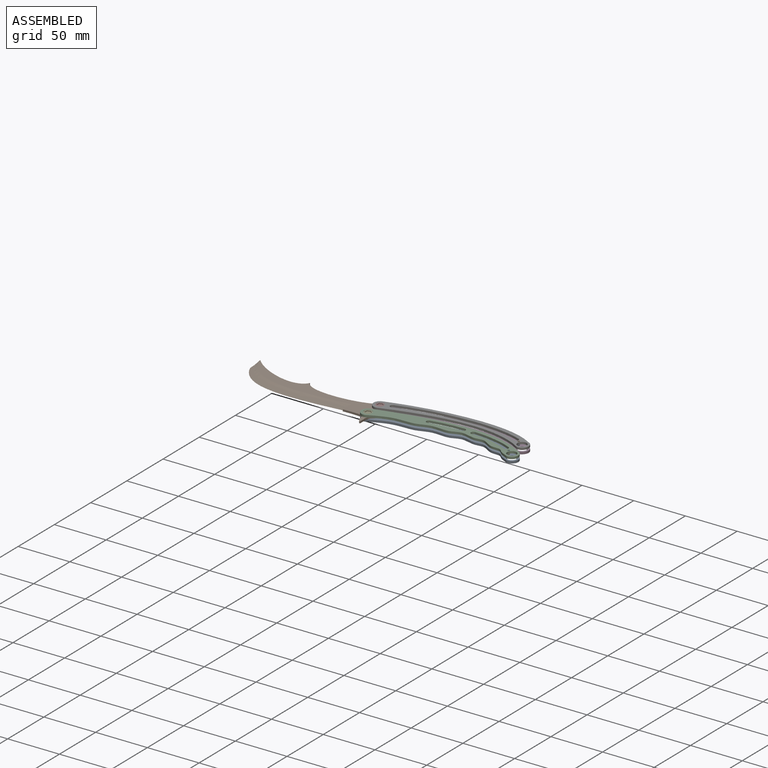
[diagram: assembled view]
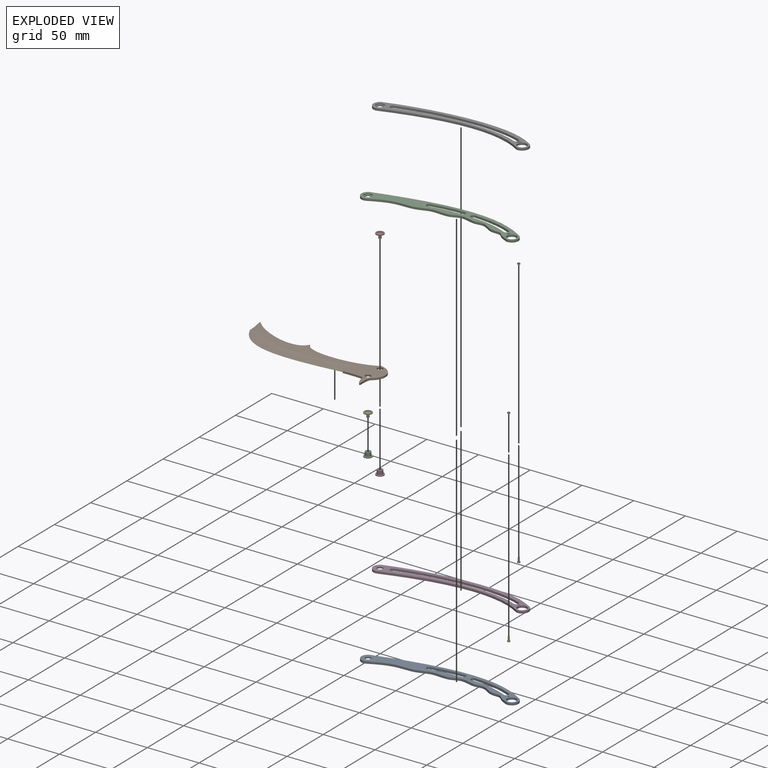
[diagram: exploded view]
GUIDED TOUR — MATED ASSEMBLY (Onshape document 11a72d09141f33b0764f494f, AutoMate assembly 11a72d09141f33b0764f494f_27b04f11c9f97ebd42daf3f0_1d5b9a840925a0e439dd26f9_default)

This assembly has 13 components, labeled P0..P12 below (a component is one placed occurrence of a part; the same part can appear more than once), held together by 14 mates. A mate is a constraint between two components; its type names the relative motion it leaves free:
  FASTENED — locks the two components together rigidly (no relative motion),
  REVOLUTE — leaves rotation about the listed axis free (a hinge),
  SLIDER — leaves translation along the listed axis free.
Axis/direction vectors are unit vectors and 'through' points are millimeter coordinates, both in the assembly's world frame.

MATES
  1. SLIDER "Slider 1": P5 <-> P10, axis (0.000, 0.000, 1.000) through (-62.68, -118.55, 54.06) mm
  2. FASTENED "Fastened 7": P5 <-> P4, direction (0.000, 0.000, 1.000) through (-62.68, -118.55, 53.17) mm
  3. FASTENED "Fastened 2": P12 <-> P2, direction (0.000, 0.000, -1.000) through (-195.37, -123.36, 53.17) mm
  4. SLIDER "Slider 2": P9 <-> P6, axis (0.000, 0.000, 1.000) through (-65.93, -100.12, 54.06) mm
  5. REVOLUTE "Revolute 1": P6 <-> P1, axis (0.000, 0.000, -1.000) through (-195.37, -106.81, 52.16) mm
  6. FASTENED "Fastened 6": P0 <-> P3, direction (0.000, 0.000, 1.000) through (-65.93, -100.12, 49.36) mm
  7. FASTENED "Fastened 4": P7 <-> P11, direction (0.000, 0.000, -1.000) through (-195.37, -106.81, 53.17) mm
  8. FASTENED "Fastened 5": P4 <-> P8, direction (0.000, 0.000, -1.000) through (-62.68, -118.55, 49.36) mm
  9. REVOLUTE "Revolute 2": P3 <-> P1, axis (0.000, 0.000, 1.000) through (-195.37, -106.81, 50.38) mm
  10. FASTENED "Fastened 8": P9 <-> P0, direction (0.000, 0.000, -1.000) through (-65.93, -100.12, 53.17) mm
  11. REVOLUTE "Revolute 3": P8 <-> P1, axis (0.000, 0.000, 1.000) through (-195.37, -123.36, 50.38) mm
  12. REVOLUTE "Revolute 4": P10 <-> P1, axis (0.000, 0.000, -1.000) through (-195.37, -123.36, 52.16) mm
  13. FASTENED "Fastened 3": P11 <-> P3, direction (0.000, 0.000, 1.000) through (-195.37, -106.81, 49.36) mm
  14. FASTENED "Fastened 1": P2 <-> P8, direction (0.000, 0.000, 1.000) through (-195.37, -123.36, 49.36) mm

ASSEMBLY ORDER
  1. P12 — the base component [order verified]
  2. P2 [order verified]
  3. P1 [order verified]
  4. P10 [order verified]
  5. P6 [order verified]
  6. P7 [order verified]
  7. P11 [order verified]
  8. P8 [order verified]
  9. P5 [order verified]
  10. P4 [order verified]
  11. P3 [order verified]
  12. P9 [order verified]
  13. P0 [order verified]
(P1, P2, P3, P8, P10 verified with a relaxed clearance tolerance: the source model stores slight part interference there.)
Order-tag legend:
  [order verified] — this step's position reverses a verified removal order: the component was checked to insert without passing through the ones already placed.

Of the 13 components, 4 carry the full construction recipe — the FeatureScript program that regenerates the part's solid from scratch; the rest are supplied as boundary geometry only.
Because this assembly has more than 12 components, the tour below covers the 12 most significant ones individually (every recipe-attached component first, then the largest by part volume), in assembly order; the remaining 1 are summarized together in a grouped section at the end.
Each toured component is shown spotlighted twice — in the assembled view, then in the exploded view, where a leader line traces a displaced component back to its assembled socket (saturated green if recipe-attached, orange if geometry-only; every other component desaturated gray) — followed by its recipe or geometry summary and the mates that hold it.
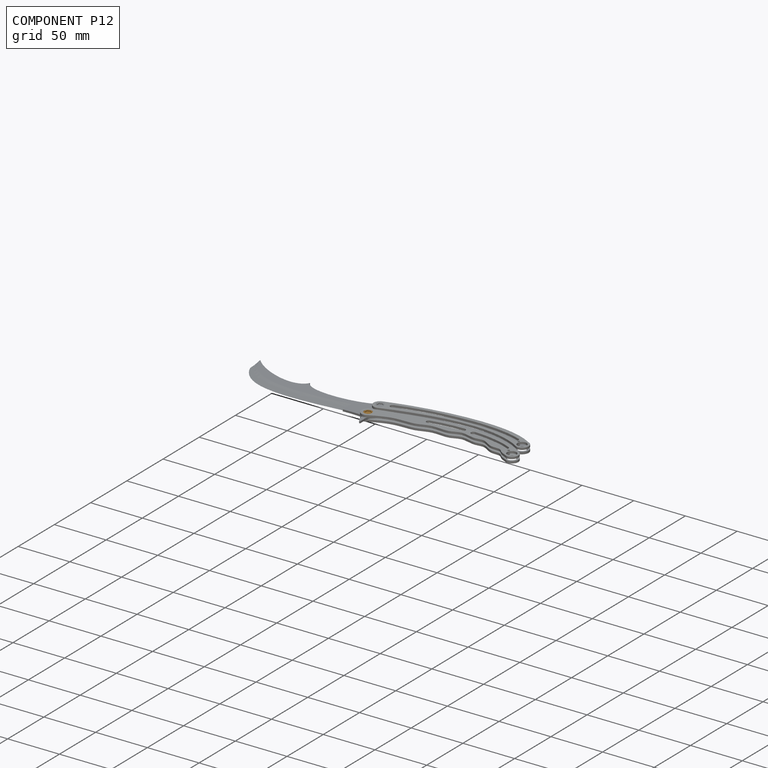
[diagram: component P12 — assembled]
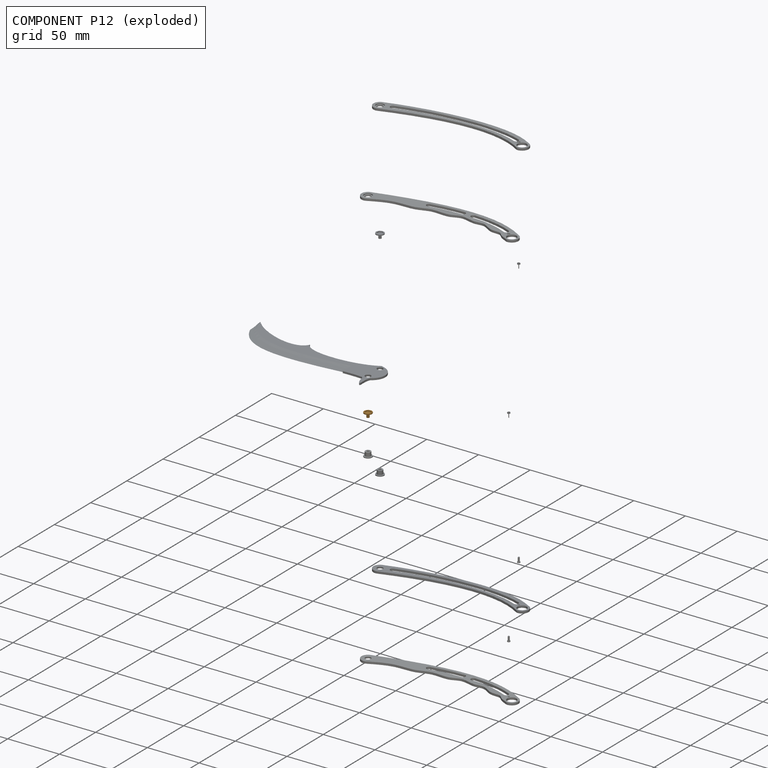
[diagram: component P12 — exploded]
COMPONENT P12 — geometry summary (no construction recipe available for this part):
  bounding box: 7.6 x 7.6 x 4.7 mm
  B-rep topology: 1 solid, 12 faces, 48 edges
  volume: 40 mm^3 (15% of its bounding box)
  symmetry: 6-fold rotationally symmetric about the z axis
Held by: FASTENED mate "Fastened 2" to P2.
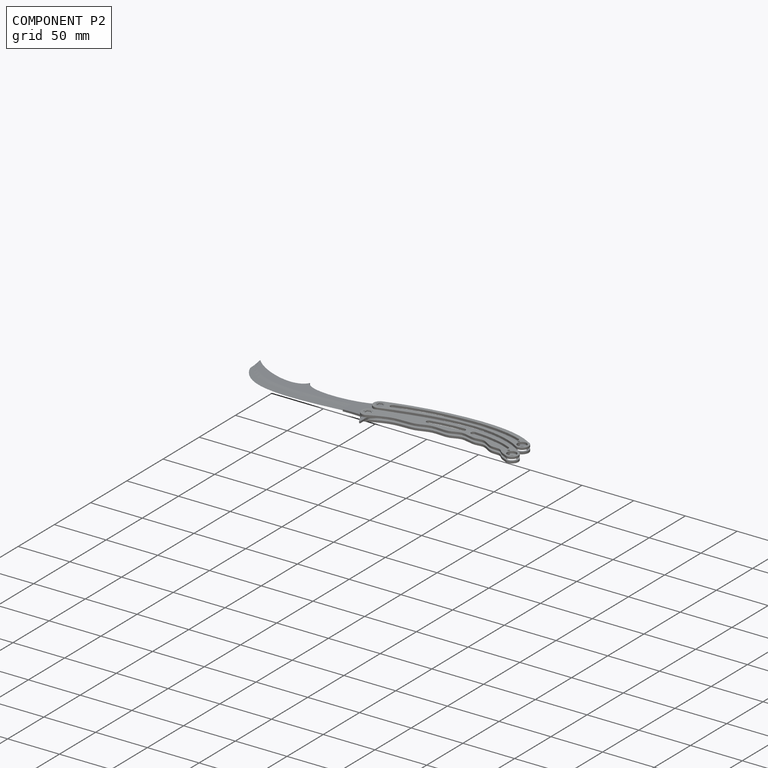
[diagram: component P2 — assembled]
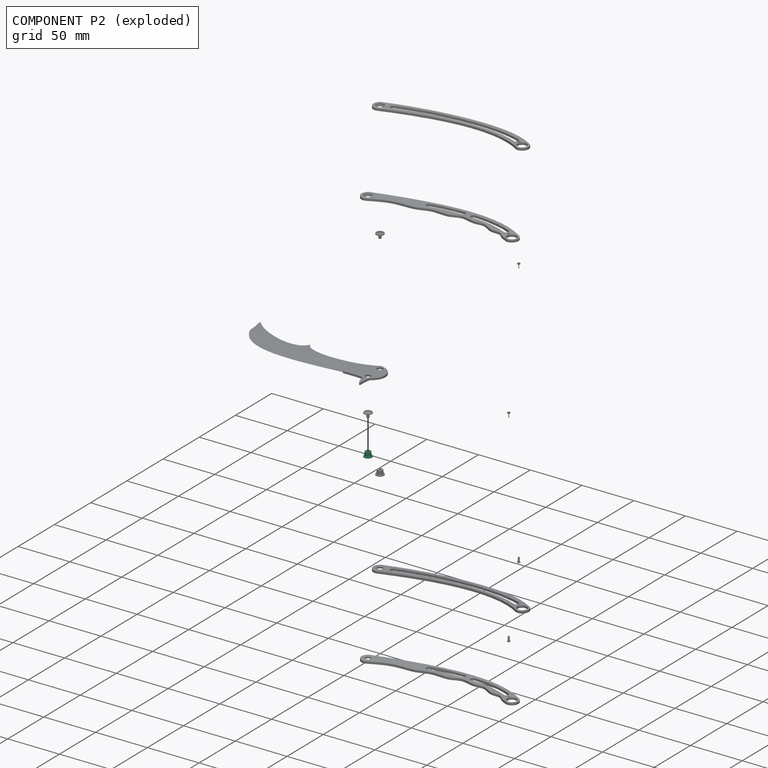
[diagram: component P2 — exploded]
COMPONENT P2 — recipe-attached (CADFS 00961306, mesh-verified: the recipe's output STEP matches this component's geometry to below the mesh-comparison resolution (tessellation chordal tolerance ~0.0176 mm)).
Held by: FASTENED mate "Fastened 2" to P12; FASTENED mate "Fastened 1" to P8.
Construction recipe (FeatureScript — the CAD program that rebuilds this solid; sketch coordinates are in the units given by the * unit suffixes, e.g. mm):

FeatureScript 1511;
import(path : "onshape/std/geometry.fs", version : "1511.0");
import(path : "onshape/std/common.fs", version : "1511.0");
const mm = millimeter;
const VERTEX = EntityType.VERTEX;
const EDGE = EntityType.EDGE;
const FACE = EntityType.FACE;
const BODY = EntityType.BODY;
function v(x, y){return vector(x, y);}
function OD(order){return orderDisambiguation(order);}
function OSD(set){return originalSetDisambiguation(set);}
function TD(topology){return topologyDisambiguation(topology);}
function TDD(query){return trueDependencyDisambiguation(query);}
function sQuery(a, b, c) {return sketchEntityQuery(a, b, c);}

annotation { "Feature Type Name" : "Feature", "Feature Type Description" : "" }
export const myFeature = defineFeature(function(context is Context, id is Id, definition is map)
    precondition{}
    {
        {
            var Q0;
            Q0=qCreatedBy(makeId("Top.planeOp"),FACE);
            var sketch = newSketch(context, id + "F0", { "sketchPlane" : qUnion([Q0])});
            skCircle(sketch, "E0", {"center": v(0, 0) * mm, "radius": 3.81 * mm});
            skSolve(sketch);
        }
        {
            var Q0;
            Q0=makeQuery(id+"F0.imprint","IMPRINT",FACE,{"disambiguationData":[TD([[makeQuery(id+"F0.imprint","IMPRINT",EDGE,{"derivedFrom":sQuery(id+"F0.wireOp",EDGE,"E0")}),1.0]])]});
            extrude(context, id + "F1", {"entities" : qUnion([Q0]), "depth" : 0.89 * mm, "offsetDistance" : 25.4 * mm});
        }
        {
            var Q0;
            Q0=makeQuery(id+"F1.opExtrude","CAP_FACE",FACE,{"disambiguationData":[OSD([sQuery(id+"F0.wireOp",EDGE,"E0")])],"isStart":false});
            var sketch = newSketch(context, id + "F2", { "sketchPlane" : qUnion([Q0])});
            skCircle(sketch, "E1", {"center": v(0, 0) * mm, "radius": 2.67 * mm});
            skSolve(sketch);
        }
        {
            var Q0;
            Q0=makeQuery(id+"F2.imprint","IMPRINT",FACE,{"disambiguationData":[TD([[makeQuery(id+"F2.imprint","IMPRINT",EDGE,{"derivedFrom":sQuery(id+"F2.wireOp",EDGE,"E1")}),1.0]])]});
            extrude(context, id + "F3", {"entities" : qUnion([Q0]), "operationType" : NewBodyOperationType.ADD, "depth" : 3.8 * mm, "offsetDistance" : 25.4 * mm});
        }
        {
            var Q0;
            Q0=makeQuery(id+"F3.opExtrude","CAP_FACE",FACE,{"disambiguationData":[OSD([sQuery(id+"F2.wireOp",EDGE,"E1")])],"isStart":false});
            var sketch = newSketch(context, id + "F4", { "sketchPlane" : qUnion([Q0])});
            skCircle(sketch, "E2", {"center": v(0, 0) * mm, "radius": 1.27 * mm});
            skSolve(sketch);
        }
        {
            var Q0;
            Q0=makeQuery(id+"F4.imprint","IMPRINT",FACE,{"disambiguationData":[TD([[makeQuery(id+"F4.imprint","IMPRINT",EDGE,{"derivedFrom":sQuery(id+"F4.wireOp",EDGE,"E2")}),1.0]])]});
            extrude(context, id + "F5", {"entities" : qUnion([Q0]), "operationType" : NewBodyOperationType.REMOVE, "oppositeDirection" : true, "depth" : 3.8 * mm, "offsetDistance" : 25.4 * mm});
        }
    });
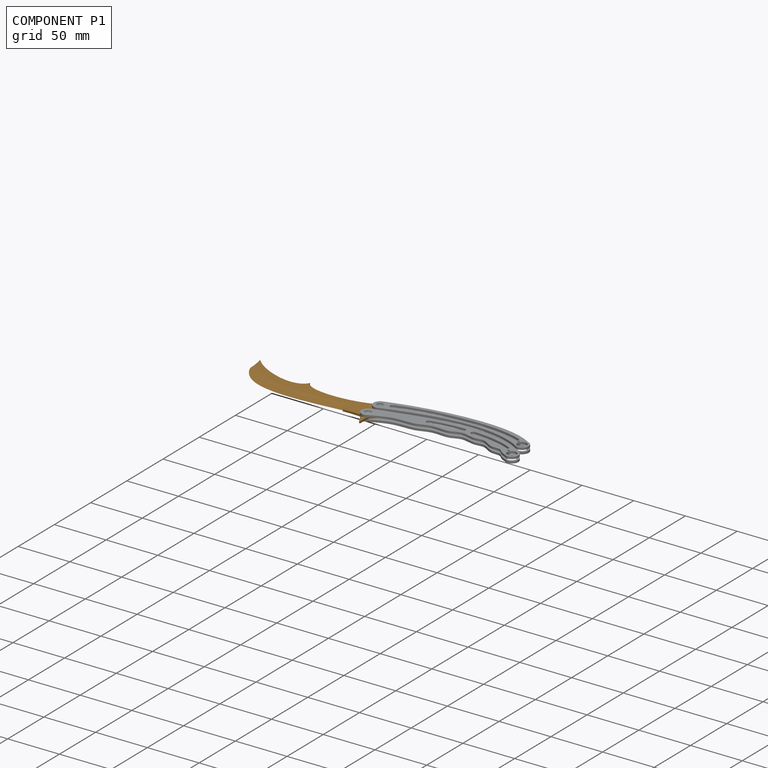
[diagram: component P1 — assembled]
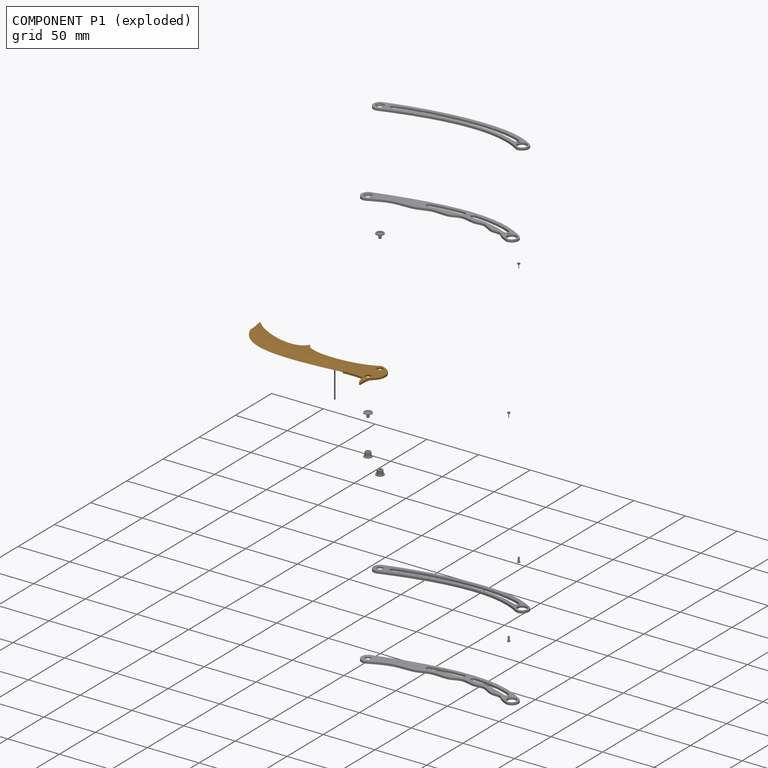
[diagram: component P1 — exploded]
COMPONENT P1 — geometry summary (no construction recipe available for this part):
  bounding box: 141.6 x 53.7 x 4.7 mm
  B-rep topology: 1 solid, 21 faces, 108 edges
  volume: 3436 mm^3 (10% of its bounding box)
  symmetry: mirror-symmetric across its z mid-plane
Held by: REVOLUTE mate "Revolute 1" to P6; REVOLUTE mate "Revolute 2" to P3; REVOLUTE mate "Revolute 3" to P8; REVOLUTE mate "Revolute 4" to P10.
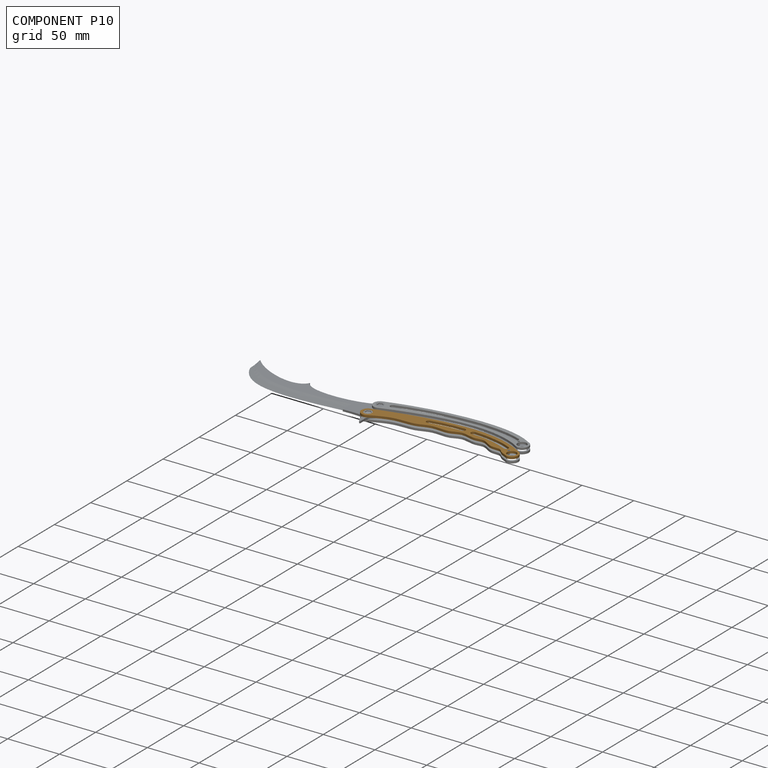
[diagram: component P10 — assembled]
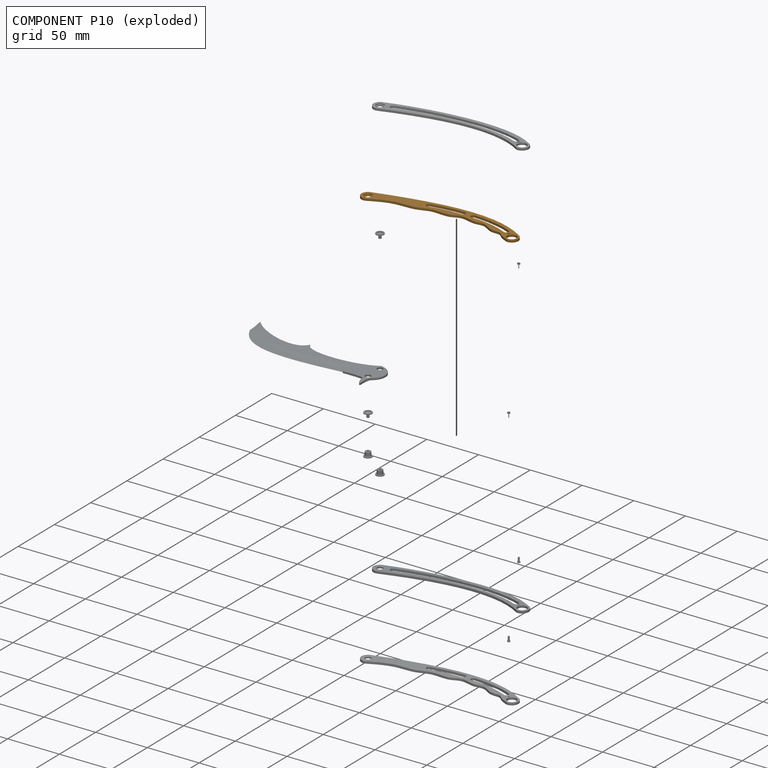
[diagram: component P10 — exploded]
COMPONENT P10 — geometry summary (no construction recipe available for this part):
  bounding box: 149.3 x 39.5 x 2.0 mm
  B-rep topology: 1 solid, 21 faces, 102 edges
  volume: 2861 mm^3 (24% of its bounding box)
Held by: SLIDER mate "Slider 1" to P5; REVOLUTE mate "Revolute 4" to P1.
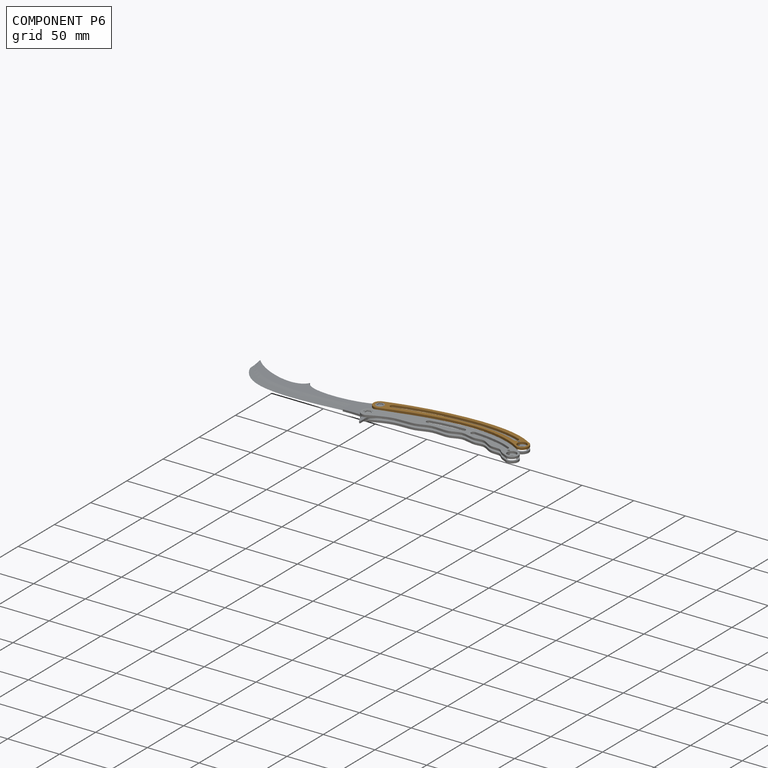
[diagram: component P6 — assembled]
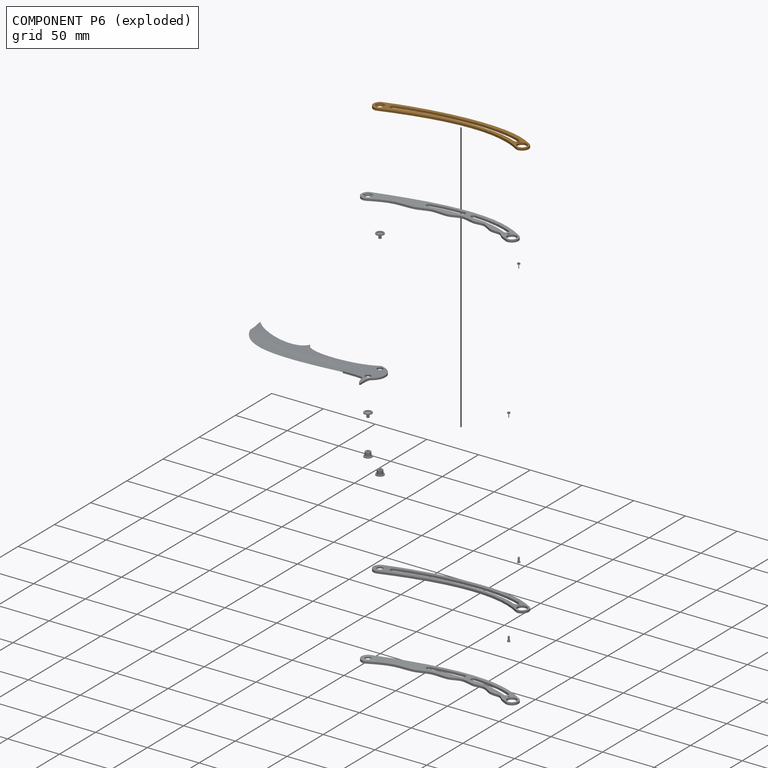
[diagram: component P6 — exploded]
COMPONENT P6 — geometry summary (no construction recipe available for this part):
  bounding box: 145.4 x 41.6 x 2.0 mm
  B-rep topology: 1 solid, 19 faces, 90 edges
  volume: 2227 mm^3 (18% of its bounding box)
  symmetry: mirror-symmetric across its z mid-plane
Held by: SLIDER mate "Slider 2" to P9; REVOLUTE mate "Revolute 1" to P1.
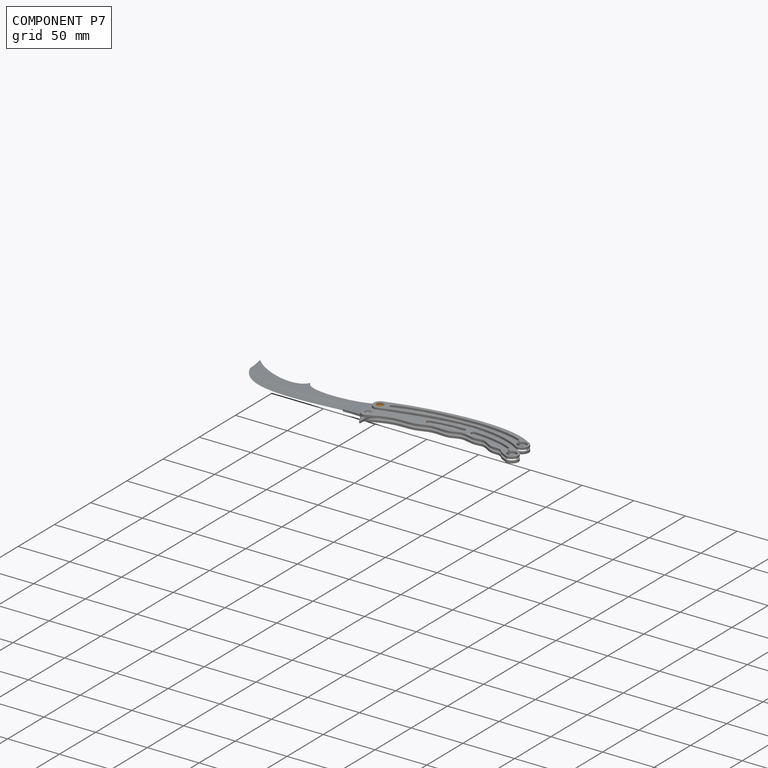
[diagram: component P7 — assembled]
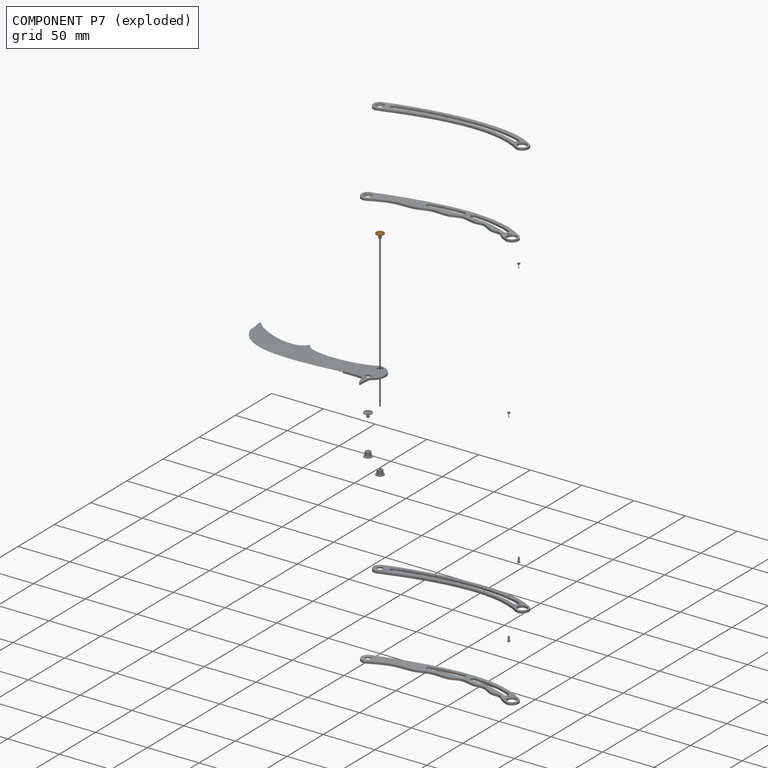
[diagram: component P7 — exploded]
COMPONENT P7 — geometry summary (no construction recipe available for this part):
  bounding box: 7.6 x 7.6 x 4.7 mm
  B-rep topology: 1 solid, 12 faces, 48 edges
  volume: 40 mm^3 (15% of its bounding box)
  symmetry: 6-fold rotationally symmetric about the z axis
Held by: FASTENED mate "Fastened 4" to P11.
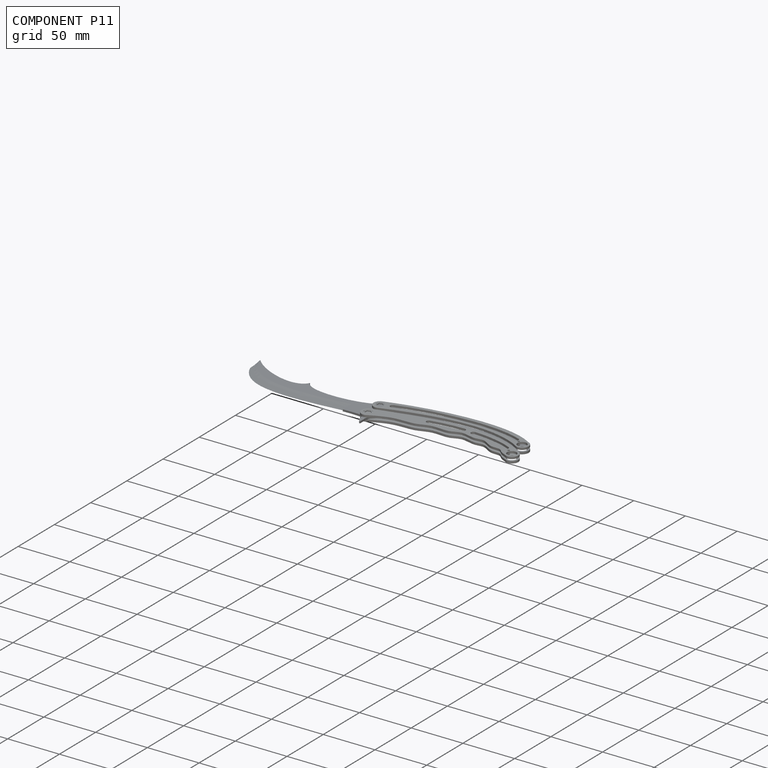
[diagram: component P11 — assembled]
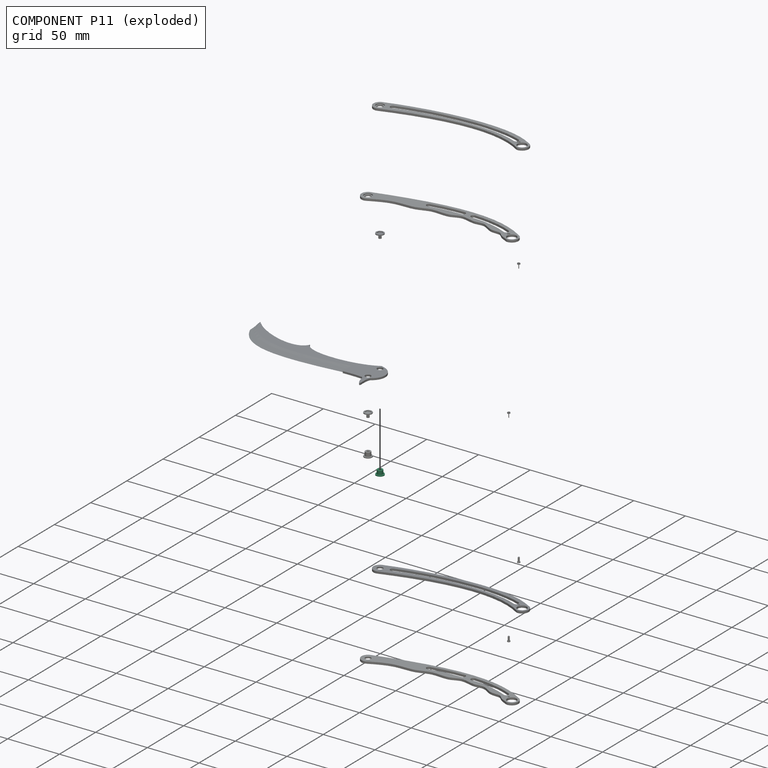
[diagram: component P11 — exploded]
COMPONENT P11 — same part as P2 (CADFS 00961306); its construction recipe is shown at P2.
Held by: FASTENED mate "Fastened 4" to P7; FASTENED mate "Fastened 3" to P3.
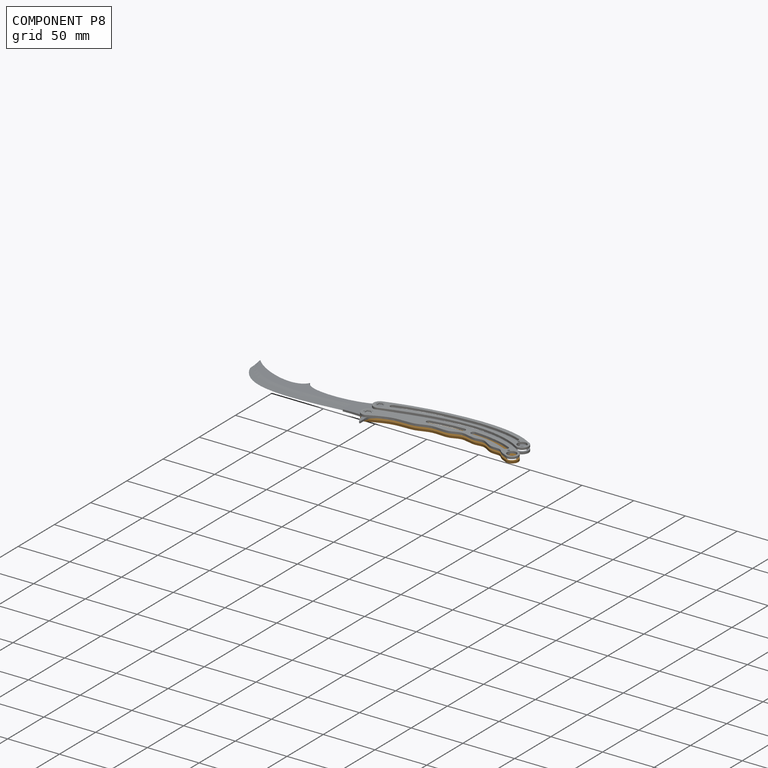
[diagram: component P8 — assembled]
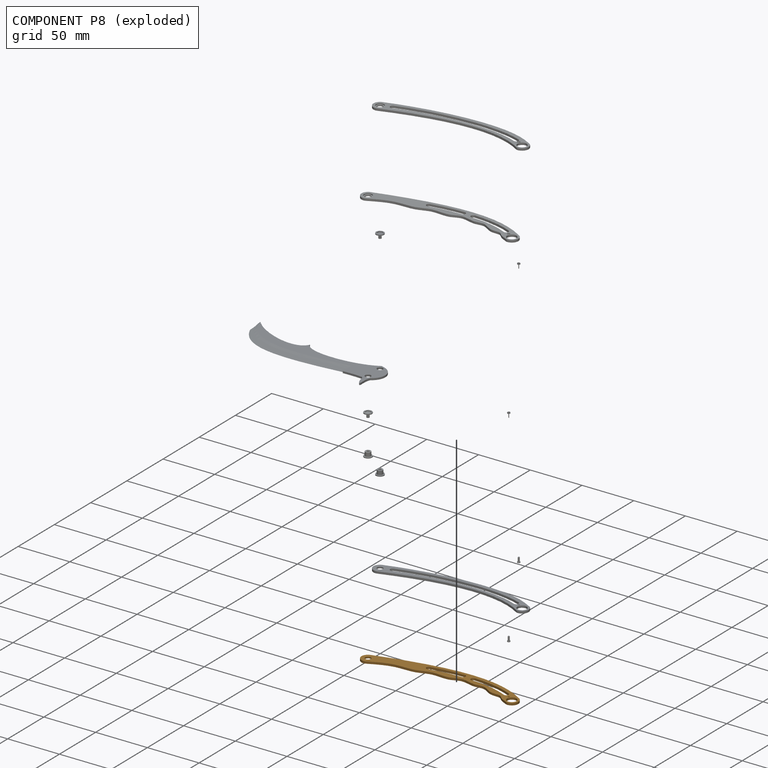
[diagram: component P8 — exploded]
COMPONENT P8 — geometry summary (no construction recipe available for this part):
  bounding box: 149.3 x 39.5 x 2.0 mm
  B-rep topology: 1 solid, 21 faces, 102 edges
  volume: 2861 mm^3 (24% of its bounding box)
Held by: FASTENED mate "Fastened 5" to P4; REVOLUTE mate "Revolute 3" to P1; FASTENED mate "Fastened 1" to P2.
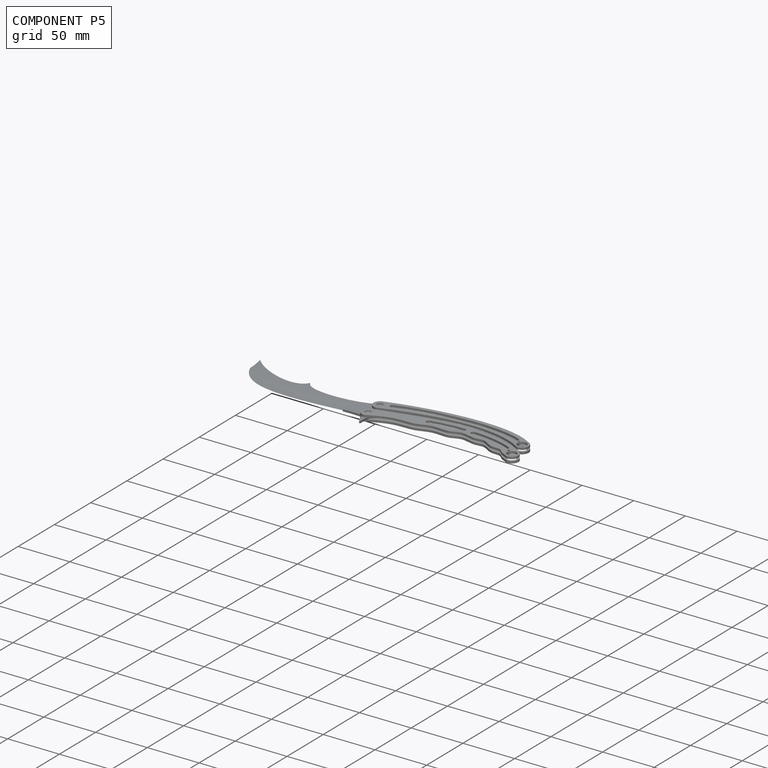
[diagram: component P5 — assembled]
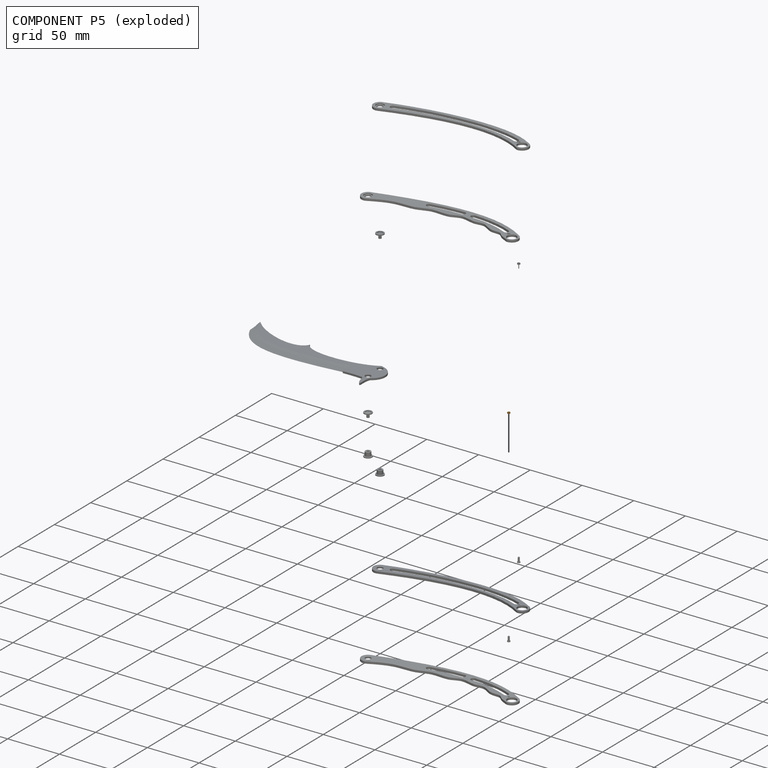
[diagram: component P5 — exploded]
COMPONENT P5 — geometry summary (no construction recipe available for this part):
  bounding box: 4.7 x 2.5 x 2.5 mm
  B-rep topology: 1 solid, 12 faces, 48 edges
  volume: 3 mm^3 (11% of its bounding box)
  symmetry: 6-fold rotationally symmetric about the z axis; mirror-symmetric across its x mid-plane, y mid-plane
Held by: SLIDER mate "Slider 1" to P10; FASTENED mate "Fastened 7" to P4.
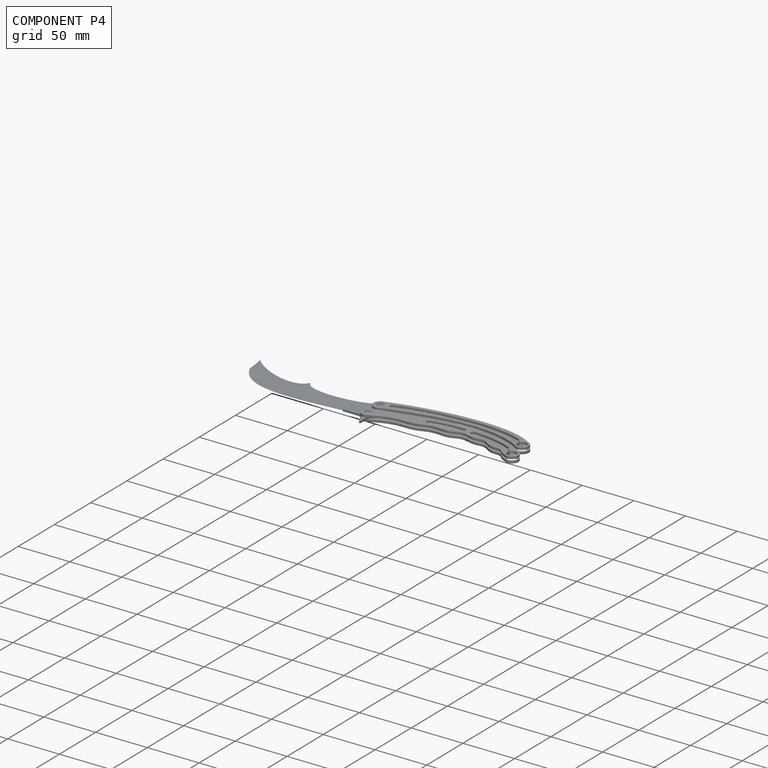
[diagram: component P4 — assembled]
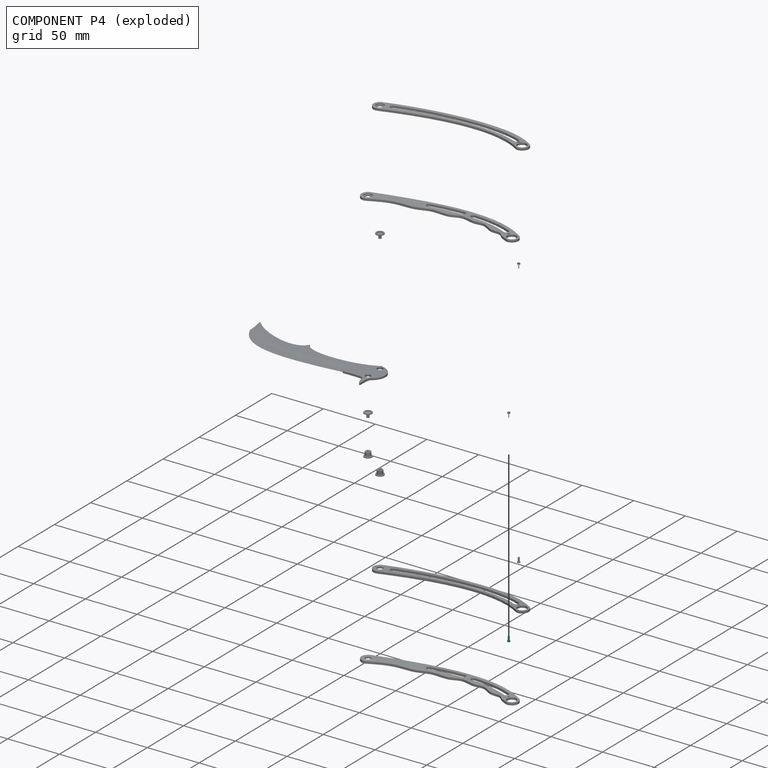
[diagram: component P4 — exploded]
COMPONENT P4 — same part as P0 (CADFS 00961308); its construction recipe is shown at P0.
Held by: FASTENED mate "Fastened 7" to P5; FASTENED mate "Fastened 5" to P8.
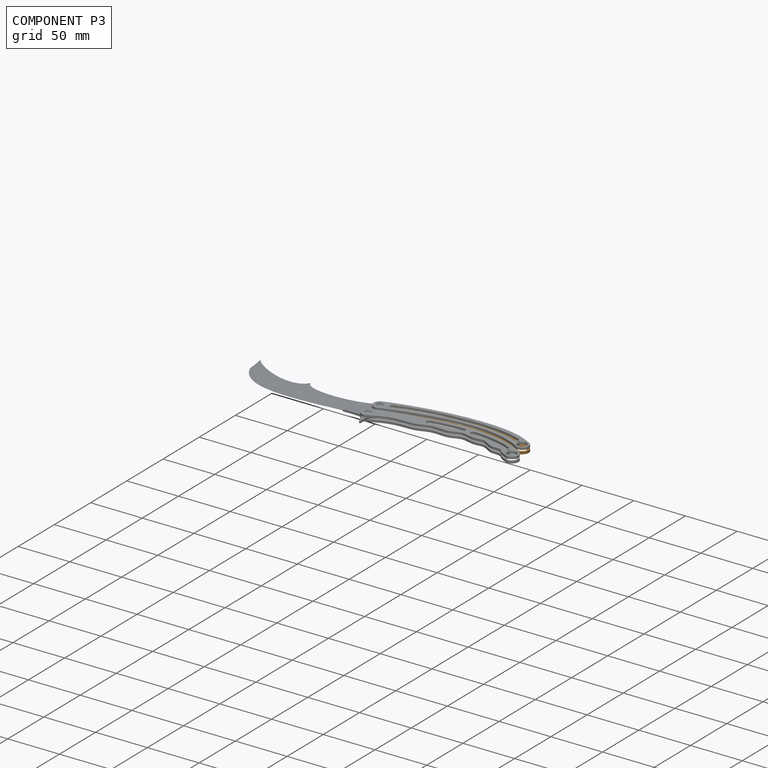
[diagram: component P3 — assembled]
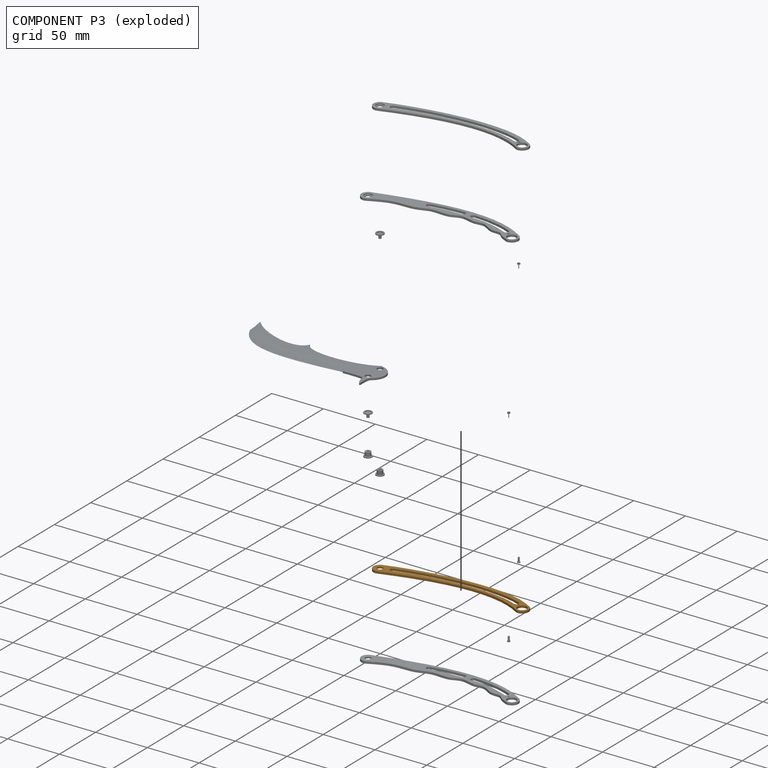
[diagram: component P3 — exploded]
COMPONENT P3 — geometry summary (no construction recipe available for this part):
  bounding box: 145.4 x 41.6 x 2.0 mm
  B-rep topology: 1 solid, 19 faces, 90 edges
  volume: 2227 mm^3 (18% of its bounding box)
Held by: FASTENED mate "Fastened 6" to P0; REVOLUTE mate "Revolute 2" to P1; FASTENED mate "Fastened 3" to P11.
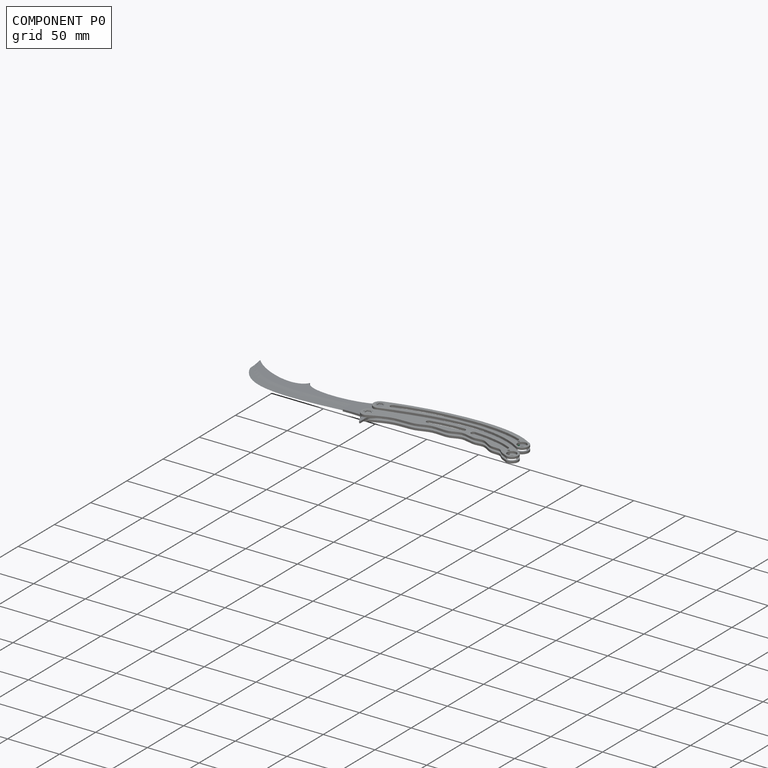
[diagram: component P0 — assembled]
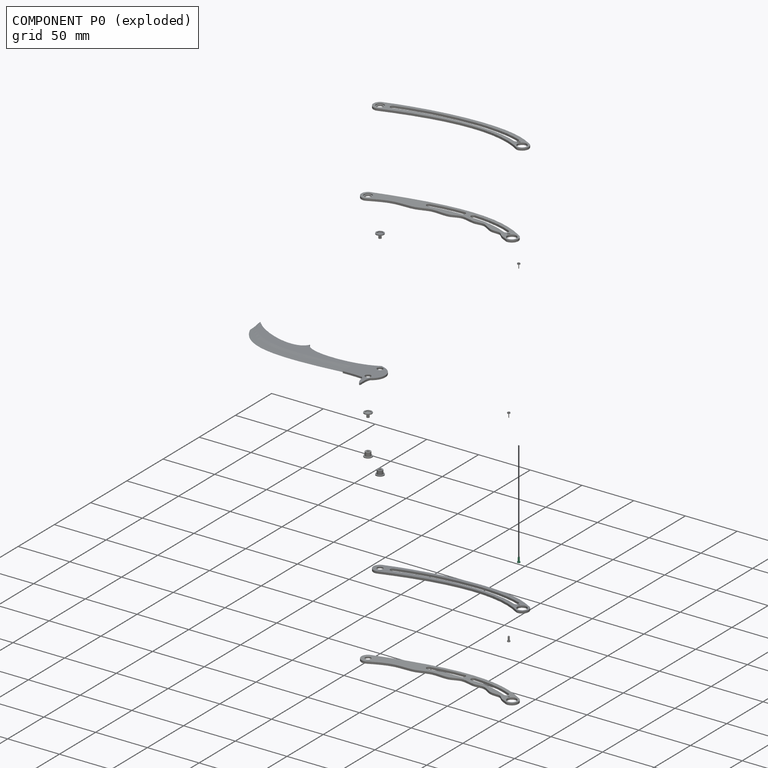
[diagram: component P0 — exploded]
COMPONENT P0 — recipe-attached (CADFS 00961308, mesh-verified: the recipe's output STEP matches this component's geometry to below the mesh-comparison resolution (tessellation chordal tolerance ~0.00887 mm)).
Held by: FASTENED mate "Fastened 6" to P3; FASTENED mate "Fastened 8" to P9.
Construction recipe (FeatureScript — the CAD program that rebuilds this solid; sketch coordinates are in the units given by the * unit suffixes, e.g. mm):

FeatureScript 1511;
import(path : "onshape/std/geometry.fs", version : "1511.0");
import(path : "onshape/std/common.fs", version : "1511.0");
const mm = millimeter;
const VERTEX = EntityType.VERTEX;
const EDGE = EntityType.EDGE;
const FACE = EntityType.FACE;
const BODY = EntityType.BODY;
function v(x, y){return vector(x, y);}
function OD(order){return orderDisambiguation(order);}
function OSD(set){return originalSetDisambiguation(set);}
function TD(topology){return topologyDisambiguation(topology);}
function TDD(query){return trueDependencyDisambiguation(query);}
function sQuery(a, b, c) {return sketchEntityQuery(a, b, c);}

annotation { "Feature Type Name" : "Feature", "Feature Type Description" : "" }
export const myFeature = defineFeature(function(context is Context, id is Id, definition is map)
    precondition{}
    {
        {
            var Q0;
            Q0=qCreatedBy(makeId("Top.planeOp"),FACE);
            var sketch = newSketch(context, id + "F0", { "sketchPlane" : qUnion([Q0])});
            skCircle(sketch, "E0", {"center": v(0, 0) * mm, "radius": 1.27 * mm});
            skSolve(sketch);
        }
        {
            var Q0;
            Q0=makeQuery(id+"F0.imprint","IMPRINT",FACE,{"disambiguationData":[TD([[makeQuery(id+"F0.imprint","IMPRINT",EDGE,{"derivedFrom":sQuery(id+"F0.wireOp",EDGE,"E0")}),1.0]])]});
            extrude(context, id + "F1", {"entities" : qUnion([Q0]), "depth" : 0.89 * mm, "offsetDistance" : 25.4 * mm});
        }
        {
            var Q0;
            Q0=makeQuery(id+"F1.opExtrude","CAP_FACE",FACE,{"disambiguationData":[OSD([sQuery(id+"F0.wireOp",EDGE,"E0")])],"isStart":false});
            var sketch = newSketch(context, id + "F2", { "sketchPlane" : qUnion([Q0])});
            skCircle(sketch, "E1", {"center": v(0, 0) * mm, "radius": 0.83 * mm});
            skSolve(sketch);
        }
        {
            var Q0;
            Q0=makeQuery(id+"F2.imprint","IMPRINT",FACE,{"disambiguationData":[TD([[makeQuery(id+"F2.imprint","IMPRINT",EDGE,{"derivedFrom":sQuery(id+"F2.wireOp",EDGE,"E1")}),1.0]])]});
            extrude(context, id + "F3", {"entities" : qUnion([Q0]), "operationType" : NewBodyOperationType.ADD, "depth" : 3.8 * mm, "offsetDistance" : 25.4 * mm});
        }
        {
            var Q0;
            Q0=makeQuery(id+"F3.opExtrude","CAP_FACE",FACE,{"disambiguationData":[OSD([sQuery(id+"F2.wireOp",EDGE,"E1")])],"isStart":false});
            var sketch = newSketch(context, id + "F4", { "sketchPlane" : qUnion([Q0])});
            skCircle(sketch, "E2", {"center": v(0, 0) * mm, "radius": 0.32 * mm});
            skSolve(sketch);
        }
        {
            var Q0;
            Q0=makeQuery(id+"F4.imprint","IMPRINT",FACE,{"disambiguationData":[TD([[makeQuery(id+"F4.imprint","IMPRINT",EDGE,{"derivedFrom":sQuery(id+"F4.wireOp",EDGE,"E2")}),1.0]])]});
            extrude(context, id + "F5", {"entities" : qUnion([Q0]), "operationType" : NewBodyOperationType.REMOVE, "oppositeDirection" : true, "depth" : 3.8 * mm, "offsetDistance" : 25.4 * mm});
        }
    });
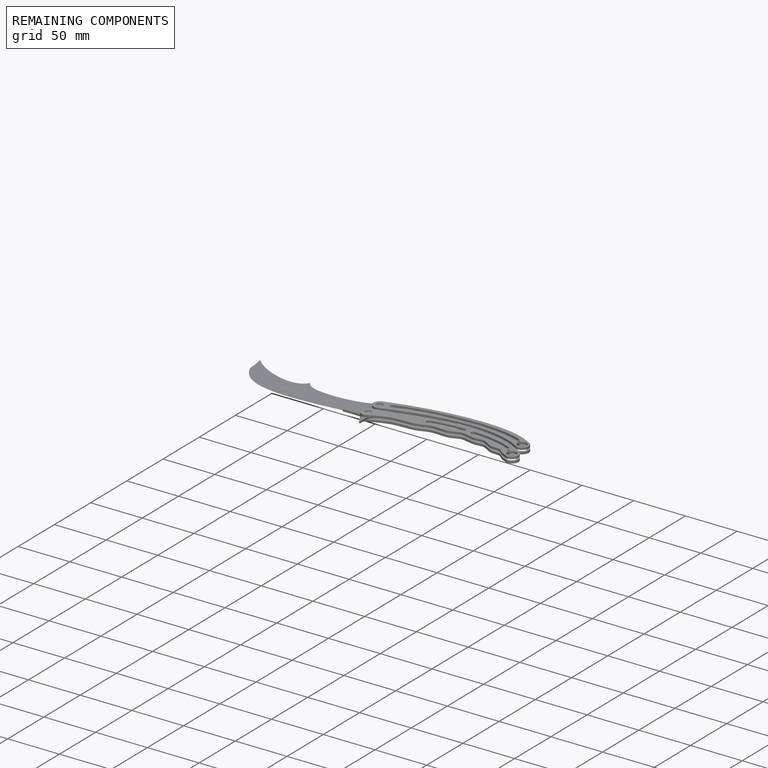
[diagram: remaining components — assembled]
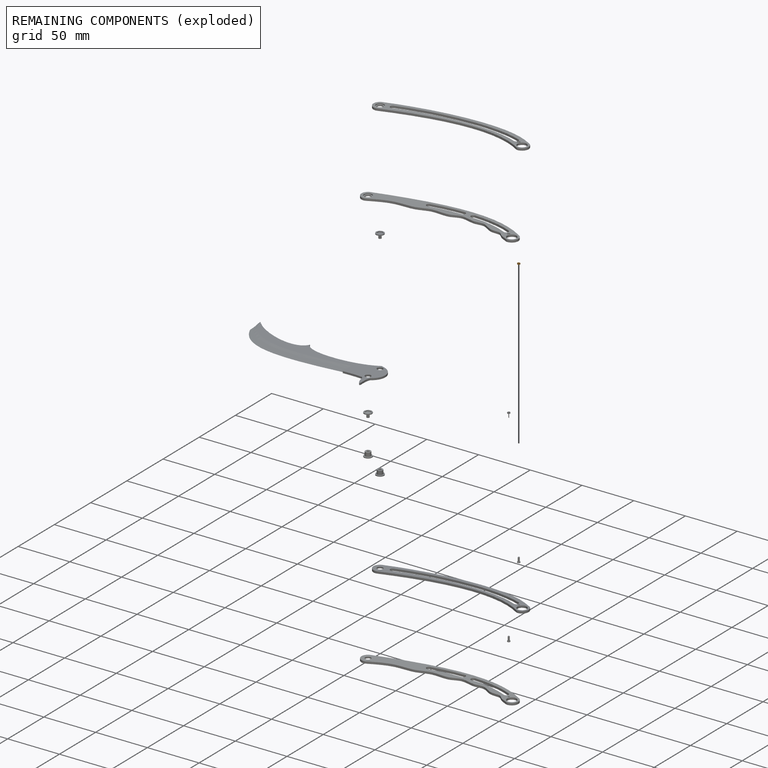
[diagram: remaining components — exploded]
REMAINING COMPONENTS (grouped) — the 1 components below fall outside the per-component tour by the significance rule stated above; both spotlight views highlight the whole group.
  P9: bounding box 4.7 x 2.5 x 2.5 mm, volume 3 mm^3. Held by: SLIDER mate "Slider 2" to P6; FASTENED mate "Fastened 8" to P0.
PROVENANCE & LICENSES
Assembly (occurrences, transforms, mates, per-part STEP geometry): AutoMate dataset, Zenodo record 7776208, CC0.
Construction recipes: CADFS (HuggingFace VladPyatov/CADFS, CC-BY-4.0, layered over the ABC dataset), FeatureScript reconstruction programs keyed by ABC model id.
Join: ABC meta listings map ABC model id -> Onshape documentId; within a shared document, parts are matched by geometric signature (bounding-box dims + volume at 0.1% relative tolerance, exact B-rep face/solid counts).
Verification: 4 of this assembly's 13 components carry a recipe attachment, and every attachment is mesh-verified: the CADFS STEP and the AutoMate member STEP were compared as meshes in their shared local frame (symmetric sampled-point-to-mesh distance); worst across the 4 attachments: below the mesh-comparison resolution (tessellation chordal tolerance ~0.0176 mm) on a 12 mm part.
Renders: orthographic iso camera (az 35 / el 25); the floor grid conveys scale (grid pitch printed in each image; no ruler). In the exploded view each component is displaced by its stored offset vector: the offsets alone carry the explosion direction (mate normal/axis signs are not orientation cues and do not encode it), and separation distances are assigned per mate-chain, not proportionally to assembly-order depth.
